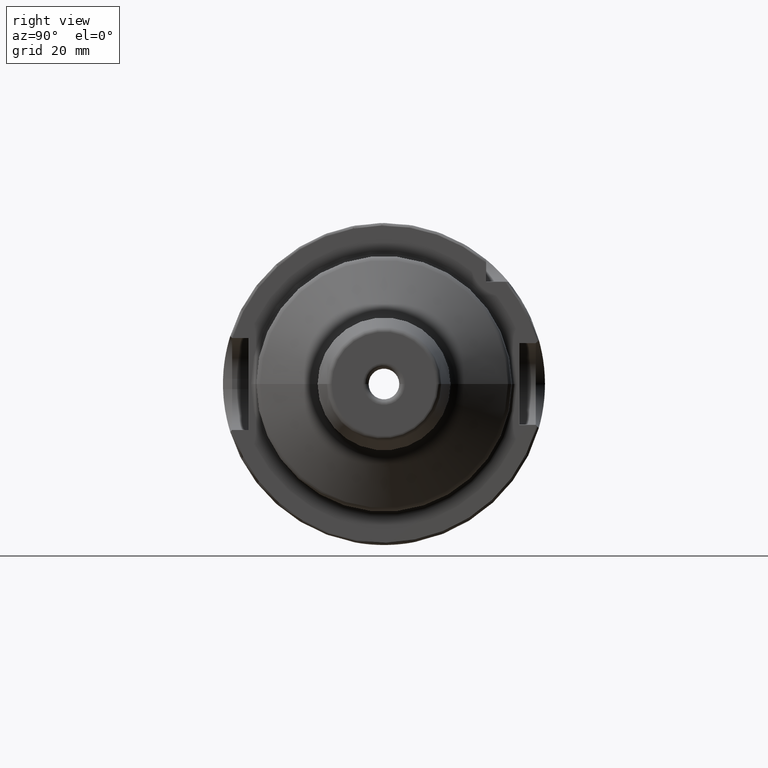
[diagram: clean part render]
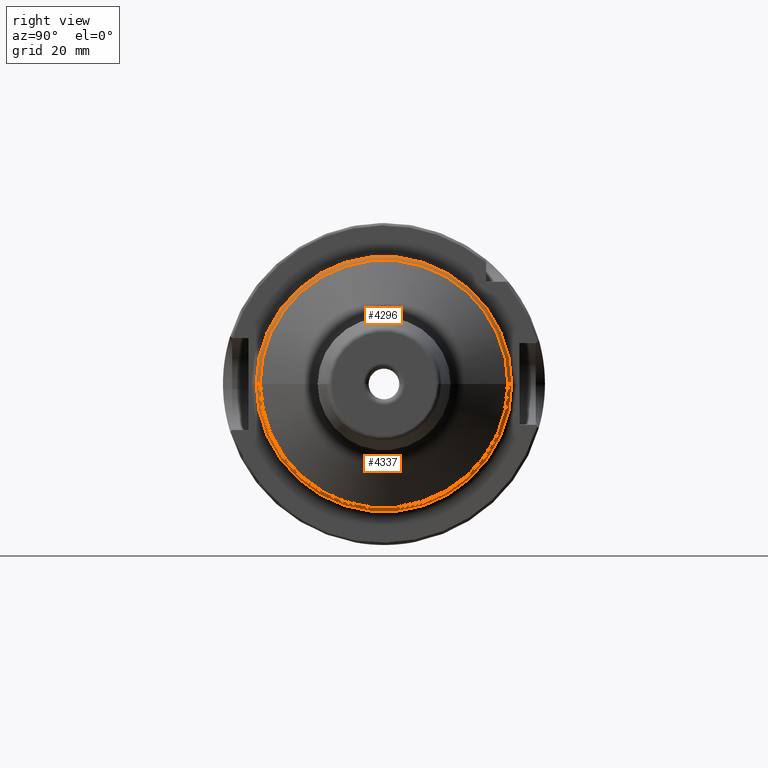
[diagram: same view with one multi-face feature highlighted, each face labeled with its STEP entity id]
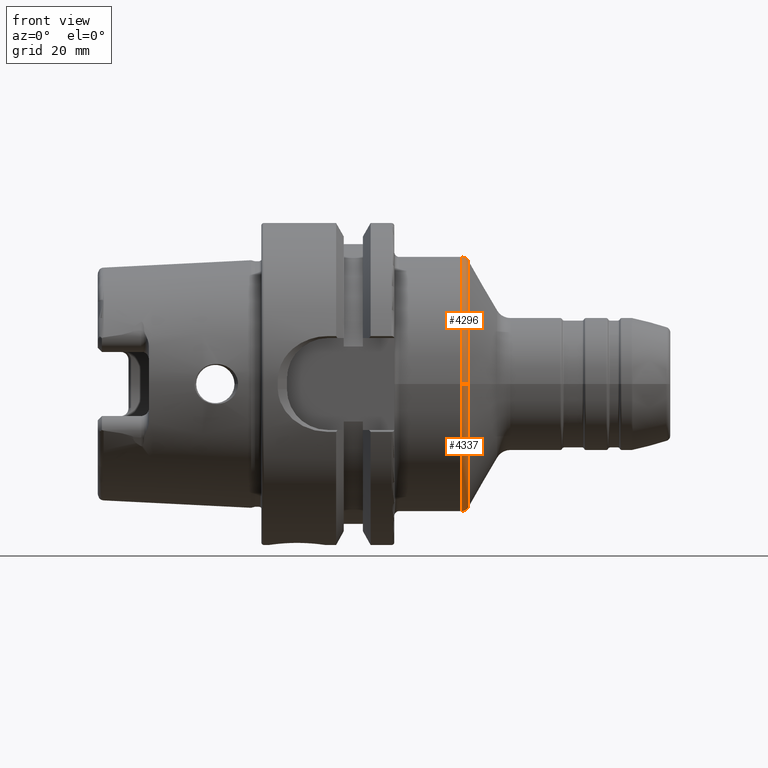
[diagram: same view with one multi-face feature highlighted, each face labeled with its STEP entity id]
A machine part, right view. The highlighted faces form ONE feature: a constant-radius fillet chain: 2 tangent blend faces with common blend radius 1.5 mm. The faces share edges in the B-rep.
A second angle (front view) of the same feature is appended — it is thin or edge-on in the first view.
Their STEP definitions:
[1] entity #4337 (Torus):
#690=CARTESIAN_POINT('',(4.050480947162E1,0.E0,0.E0));
#691=DIRECTION('',(-1.E0,0.E0,0.E0));
#692=DIRECTION('',(0.E0,1.E0,0.E0));
#693=AXIS2_PLACEMENT_3D('',#690,#691,#692);
#714=CARTESIAN_POINT('',(3.920577136594E1,-2.35E1,-3.791719160873E-10));
#715=DIRECTION('',(0.E0,-1.613497530029E-11,1.E0));
#716=DIRECTION('',(2.273736754432E-13,-1.E0,-1.613497530029E-11));
#717=AXIS2_PLACEMENT_3D('',#714,#715,#716);
#729=CARTESIAN_POINT('',(3.920577136594E1,0.E0,0.E0));
#730=DIRECTION('',(-1.E0,0.E0,0.E0));
#731=DIRECTION('',(0.E0,1.E0,0.E0));
#732=AXIS2_PLACEMENT_3D('',#729,#730,#731);
#747=CARTESIAN_POINT('',(3.920577136594E1,2.35E1,3.791671143727E-10));
#748=DIRECTION('',(0.E0,1.613477060292E-11,-1.E0));
#749=DIRECTION('',(2.226367238715E-13,1.E0,1.613477060292E-11));
#750=AXIS2_PLACEMENT_3D('',#747,#748,#749);
#3253=CARTESIAN_POINT('',(3.920577136594E1,-2.5E1,0.E0));
#3254=CARTESIAN_POINT('',(3.920577136594E1,2.5E1,0.E0));
#3255=VERTEX_POINT('',#3253);
#3256=VERTEX_POINT('',#3254);
#3257=CARTESIAN_POINT('',(4.050480947162E1,-2.425E1,0.E0));
#3258=CARTESIAN_POINT('',(4.050480947162E1,2.425E1,0.E0));
#3259=VERTEX_POINT('',#3257);
#3260=VERTEX_POINT('',#3258);
#4326=CARTESIAN_POINT('',(3.920577136594E1,0.E0,0.E0));
#4327=DIRECTION('',(1.E0,0.E0,0.E0));
#4328=DIRECTION('',(0.E0,9.999641831621E-1,8.463592197514E-3));
#4329=AXIS2_PLACEMENT_3D('',#4326,#4327,#4328);
#4330=TOROIDAL_SURFACE('',#4329,2.35E1,1.5E0);
#4331=ORIENTED_EDGE('',*,*,#4317,.T.);
#4332=ORIENTED_EDGE('',*,*,#4292,.T.);
#4333=ORIENTED_EDGE('',*,*,#4249,.F.);
#4334=ORIENTED_EDGE('',*,*,#4289,.F.);
#4335=EDGE_LOOP('',(#4331,#4332,#4333,#4334));
#4336=FACE_OUTER_BOUND('',#4335,.F.);
#4337=ADVANCED_FACE('',(#4336),#4330,.T.);
#694=CIRCLE('',#693,2.425E1);
#718=CIRCLE('',#717,1.5E0);
#733=CIRCLE('',#732,2.5E1);
#751=CIRCLE('',#750,1.5E0);
#4249=EDGE_CURVE('',#3260,#3259,#694,.T.);
#4289=EDGE_CURVE('',#3256,#3260,#751,.T.);
#4292=EDGE_CURVE('',#3255,#3259,#718,.T.);
#4317=EDGE_CURVE('',#3256,#3255,#733,.T.);
[2] entity #4296 (Torus):
#704=CARTESIAN_POINT('',(4.050480947162E1,0.E0,0.E0));
#705=DIRECTION('',(-1.E0,0.E0,0.E0));
#706=DIRECTION('',(0.E0,-1.E0,0.E0));
#707=AXIS2_PLACEMENT_3D('',#704,#705,#706);
#714=CARTESIAN_POINT('',(3.920577136594E1,-2.35E1,-3.791719160873E-10));
#715=DIRECTION('',(0.E0,-1.613497530029E-11,1.E0));
#716=DIRECTION('',(2.273736754432E-13,-1.E0,-1.613497530029E-11));
#717=AXIS2_PLACEMENT_3D('',#714,#715,#716);
#719=CARTESIAN_POINT('',(3.920577136594E1,0.E0,0.E0));
#720=DIRECTION('',(-1.E0,0.E0,0.E0));
#721=DIRECTION('',(0.E0,-1.E0,0.E0));
#722=AXIS2_PLACEMENT_3D('',#719,#720,#721);
#747=CARTESIAN_POINT('',(3.920577136594E1,2.35E1,3.791671143727E-10));
#748=DIRECTION('',(0.E0,1.613477060292E-11,-1.E0));
#749=DIRECTION('',(2.226367238715E-13,1.E0,1.613477060292E-11));
#750=AXIS2_PLACEMENT_3D('',#747,#748,#749);
#3253=CARTESIAN_POINT('',(3.920577136594E1,-2.5E1,0.E0));
#3254=CARTESIAN_POINT('',(3.920577136594E1,2.5E1,0.E0));
#3255=VERTEX_POINT('',#3253);
#3256=VERTEX_POINT('',#3254);
#3257=CARTESIAN_POINT('',(4.050480947162E1,-2.425E1,0.E0));
#3258=CARTESIAN_POINT('',(4.050480947162E1,2.425E1,0.E0));
#3259=VERTEX_POINT('',#3257);
#3260=VERTEX_POINT('',#3258);
#4282=CARTESIAN_POINT('',(3.920577136594E1,0.E0,0.E0));
#4283=DIRECTION('',(1.E0,0.E0,0.E0));
#4284=DIRECTION('',(0.E0,-9.999641831621E-1,-8.463592197514E-3));
#4285=AXIS2_PLACEMENT_3D('',#4282,#4283,#4284);
#4286=TOROIDAL_SURFACE('',#4285,2.35E1,1.5E0);
#4288=ORIENTED_EDGE('',*,*,#4287,.T.);
#4290=ORIENTED_EDGE('',*,*,#4289,.T.);
#4291=ORIENTED_EDGE('',*,*,#4264,.F.);
#4293=ORIENTED_EDGE('',*,*,#4292,.F.);
#4294=EDGE_LOOP('',(#4288,#4290,#4291,#4293));
#4295=FACE_OUTER_BOUND('',#4294,.F.);
#4296=ADVANCED_FACE('',(#4295),#4286,.T.);
#708=CIRCLE('',#707,2.425E1);
#718=CIRCLE('',#717,1.5E0);
#723=CIRCLE('',#722,2.5E1);
#751=CIRCLE('',#750,1.5E0);
#4264=EDGE_CURVE('',#3259,#3260,#708,.T.);
#4287=EDGE_CURVE('',#3255,#3256,#723,.T.);
#4289=EDGE_CURVE('',#3256,#3260,#751,.T.);
#4292=EDGE_CURVE('',#3255,#3259,#718,.T.);